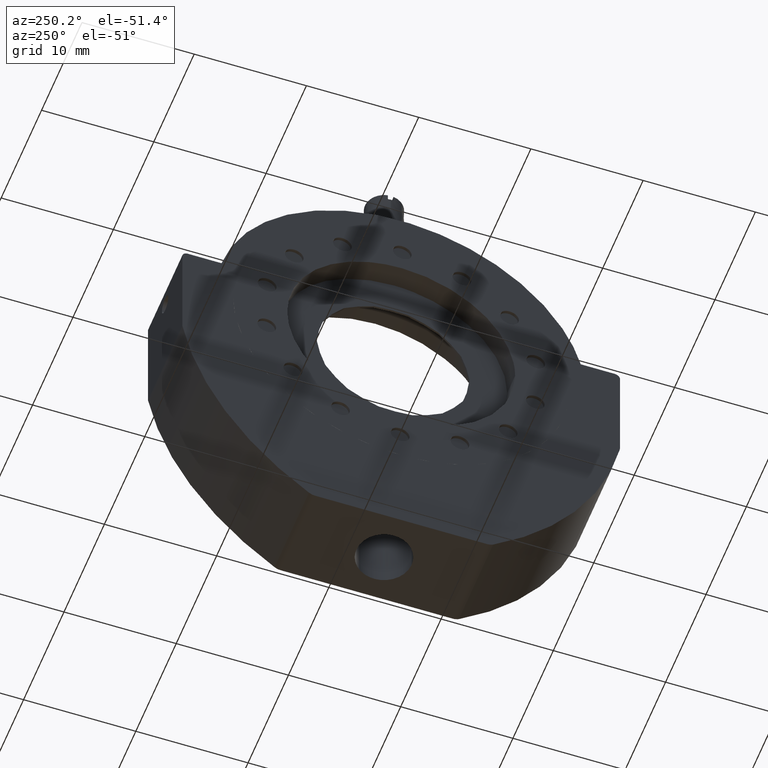
[diagram: clean part render]
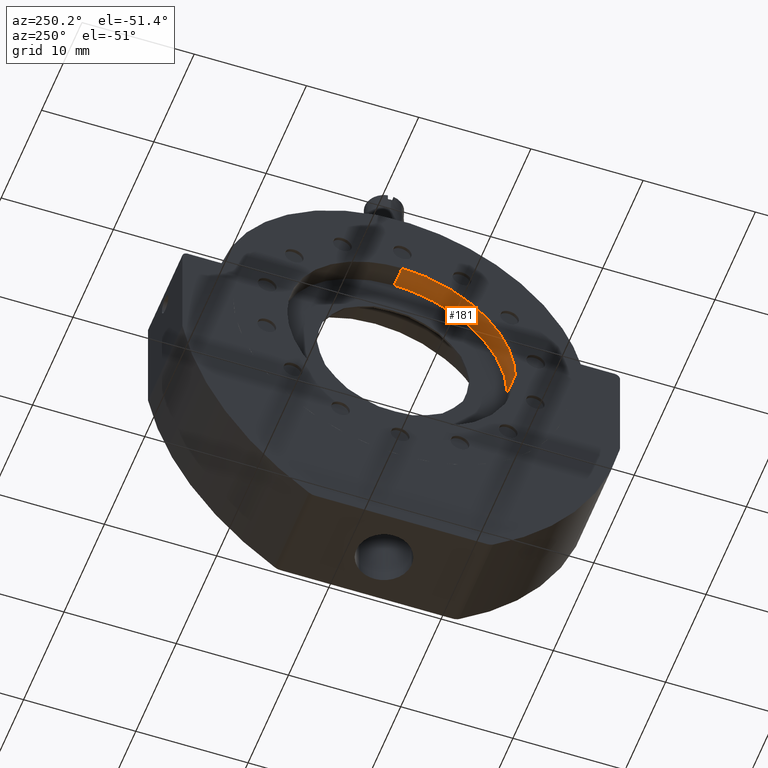
[diagram: same view with one face highlighted and labeled with its STEP entity id]
A machine part, auxiliary view. The second image highlights one B-rep face of the part: STEP entity #181.
In plain terms, the highlighted face is a freeform B-spline surface patch.
Its self-contained STEP definition (entity closure, byte-faithful):
#181=ADVANCED_FACE('',(#503),#5550,.T.);
#503=FACE_OUTER_BOUND('',#849,.T.);
#849=EDGE_LOOP('',(#1806,#1807,#1808,#1809));
#1806=ORIENTED_EDGE('',*,*,#3274,.F.);
#1807=ORIENTED_EDGE('',*,*,#3269,.F.);
#1808=ORIENTED_EDGE('',*,*,#3270,.F.);
#1809=ORIENTED_EDGE('',*,*,#3271,.F.);
#3269=EDGE_CURVE('',#5010,#5267,#4081,.T.);
#3270=EDGE_CURVE('',#5093,#5010,#4576,.T.);
#3271=EDGE_CURVE('',#5268,#5093,#4082,.T.);
#3274=EDGE_CURVE('',#5267,#5268,#4577,.T.);
#4081=(
BOUNDED_CURVE()
B_SPLINE_CURVE(2,(#10649,#10650,#10651),.UNSPECIFIED.,.F.,.F.)
B_SPLINE_CURVE_WITH_KNOTS((3,3),(0.,15.8703484411471),.UNSPECIFIED.)
CURVE()
GEOMETRIC_REPRESENTATION_ITEM()
RATIONAL_B_SPLINE_CURVE((1.,0.709861742118743,1.))
REPRESENTATION_ITEM('')
);
#4082=(
BOUNDED_CURVE()
B_SPLINE_CURVE(2,(#10654,#10655,#10656),.UNSPECIFIED.,.F.,.F.)
B_SPLINE_CURVE_WITH_KNOTS((3,3),(-15.8703484411471,0.),.UNSPECIFIED.)
CURVE()
GEOMETRIC_REPRESENTATION_ITEM()
RATIONAL_B_SPLINE_CURVE((1.,0.709861742118743,1.))
REPRESENTATION_ITEM('')
);
#4576=B_SPLINE_CURVE_WITH_KNOTS('',1,(#10652,#10653),.UNSPECIFIED.,.F.,
 .F.,(2,2),(-1.96153846153847,0.),.UNSPECIFIED.);
#4577=B_SPLINE_CURVE_WITH_KNOTS('',1,(#10669,#10670),.UNSPECIFIED.,.F.,
 .F.,(2,2),(0.316153846153852,2.27769230769231),.UNSPECIFIED.);
#5010=VERTEX_POINT('',#9083);
#5093=VERTEX_POINT('',#9166);
#5267=VERTEX_POINT('',#9340);
#5268=VERTEX_POINT('',#9341);
#5550=(
BOUNDED_SURFACE()
B_SPLINE_SURFACE(1,2,((#7381,#7382,#7383,#7384,#7385,#7386,#7387,#7388,
#7389),(#7390,#7391,#7392,#7393,#7394,#7395,#7396,#7397,#7398)),
 .UNSPECIFIED.,.F.,.F.,.F.)
B_SPLINE_SURFACE_WITH_KNOTS((2,2),(3,2,2,2,3),(0.,2.59384615384617),(0.,
1.5707963267949,3.14159265358979,4.71238898038469,6.28318530717959),
 .UNSPECIFIED.)
GEOMETRIC_REPRESENTATION_ITEM()
RATIONAL_B_SPLINE_SURFACE(((1.,0.707106781186548,1.,0.707106781186548,1.,
0.707106781186548,1.,0.707106781186548,1.),(1.,0.707106781186548,1.,0.707106781186548,
1.,0.707106781186548,1.,0.707106781186548,1.)))
REPRESENTATION_ITEM('')
SURFACE()
);
#7381=CARTESIAN_POINT('',(11.5107692307692,6.3461538461538,2.52326440229894));
#7382=CARTESIAN_POINT('',(11.5107692307692,6.3461538461538,-7.63058175154726));
#7383=CARTESIAN_POINT('',(11.5107692307692,16.5,-7.63058175154726));
#7384=CARTESIAN_POINT('',(11.5107692307692,26.6538461538462,-7.63058175154726));
#7385=CARTESIAN_POINT('',(11.5107692307692,26.6538461538462,2.52326440229894));
#7386=CARTESIAN_POINT('',(11.5107692307692,26.6538461538462,12.6771105561451));
#7387=CARTESIAN_POINT('',(11.5107692307692,16.5,12.6771105561451));
#7388=CARTESIAN_POINT('',(11.5107692307692,6.3461538461538,12.6771105561451));
#7389=CARTESIAN_POINT('',(11.5107692307692,6.3461538461538,2.52326440229894));
#7390=CARTESIAN_POINT('',(14.1046153846154,6.3461538461538,2.52326440229894));
#7391=CARTESIAN_POINT('',(14.1046153846154,6.3461538461538,-7.63058175154726));
#7392=CARTESIAN_POINT('',(14.1046153846154,16.5,-7.63058175154726));
#7393=CARTESIAN_POINT('',(14.1046153846154,26.6538461538462,-7.63058175154726));
#7394=CARTESIAN_POINT('',(14.1046153846154,26.6538461538462,2.52326440229894));
#7395=CARTESIAN_POINT('',(14.1046153846154,26.6538461538462,12.6771105561451));
#7396=CARTESIAN_POINT('',(14.1046153846154,16.5,12.6771105561451));
#7397=CARTESIAN_POINT('',(14.1046153846154,6.3461538461538,12.6771105561451));
#7398=CARTESIAN_POINT('',(14.1046153846154,6.3461538461538,2.52326440229894));
#9083=CARTESIAN_POINT('',(11.826923076923,16.4207250052386,12.676801086193));
#9166=CARTESIAN_POINT('',(13.7884615384615,16.4207250052386,12.676801086193));
#9340=CARTESIAN_POINT('',(11.826923076923,6.3461538461538,2.52326440229894));
#9341=CARTESIAN_POINT('',(13.7884615384615,6.3461538461538,2.52326440229894));
#10649=CARTESIAN_POINT('',(11.826923076923,16.4207250052386,12.676801086193));
#10650=CARTESIAN_POINT('',(11.826923076923,6.34615384615381,12.5981426245432));
#10651=CARTESIAN_POINT('',(11.826923076923,6.3461538461538,2.52326440229894));
#10652=CARTESIAN_POINT('',(13.7884615384615,16.4207250052386,12.676801086193));
#10653=CARTESIAN_POINT('',(11.826923076923,16.4207250052386,12.676801086193));
#10654=CARTESIAN_POINT('',(13.7884615384615,6.3461538461538,2.52326440229894));
#10655=CARTESIAN_POINT('',(13.7884615384615,6.3461538461538,12.5981426245432));
#10656=CARTESIAN_POINT('',(13.7884615384615,16.4207250052386,12.676801086193));
#10669=CARTESIAN_POINT('',(11.826923076923,6.3461538461538,2.52326440229894));
#10670=CARTESIAN_POINT('',(13.7884615384615,6.3461538461538,2.52326440229894));